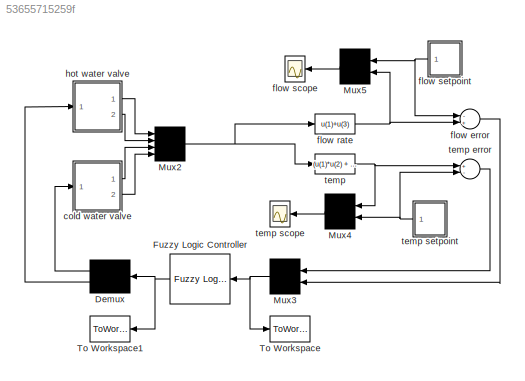
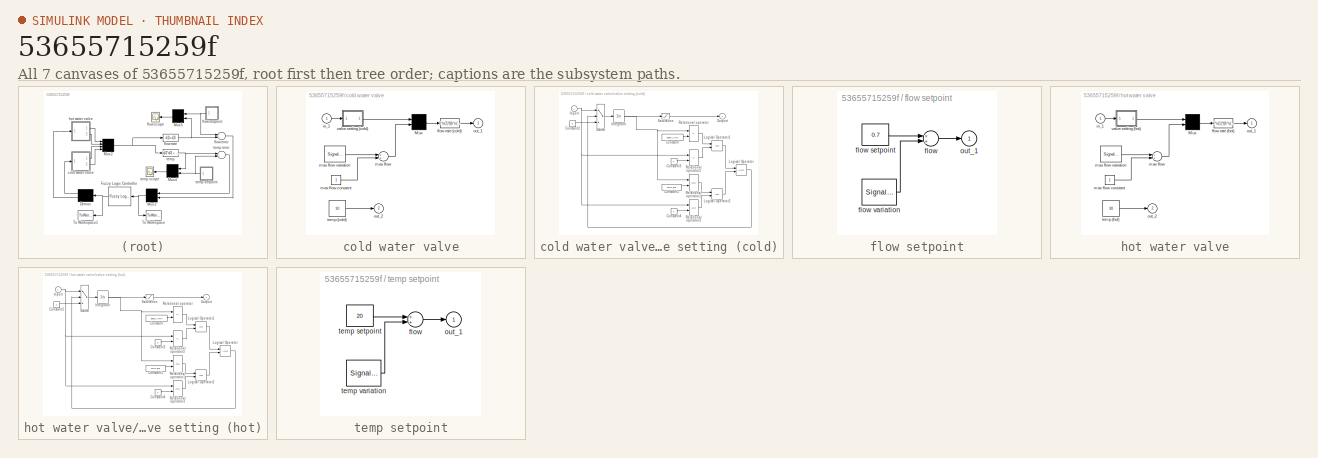
[diagram: thumbnail index - all 7 canvases of the model, root first then tree order]
MODEL slx_53655715259f
KIND model
CONFIG AbsTol = 1e-3
CONFIG EnableMultiTasking = off
CONFIG FixedStep = auto
CONFIG MaxStep = 0.1
CONFIG MinStep = auto
CONFIG PreLoadFcn = fisMatrix=readfis('shower'); k=1;
CONFIG RelTol = 1e-3
CONFIG SampleTimeConstraint = Unconstrained
CONFIG Solver = ode45
CONFIG SolverName = ode45
CONFIG StartTime = 0
CONFIG StopTime = 50
BLOCK [Demux] Demux
  Outputs = 2
  Ports = [1, 2]
BLOCK [Reference] Fuzzy Logic Controller  REF=fuzblock/Fuzzy Logic   (lib defined in mdl_858b3b3e7478)
Controller
  Ports = [1, 1]
  SourceBlock = fuzblock/Fuzzy Logic \nController
  SourceProductBaseCode = FL
  SourceProductName = Fuzzy Logic Toolbox
  SourceType = FIS
BLOCK [Mux] Mux2
  Ports = [4, 1]
BLOCK [Mux] Mux3
  Inputs = 2
  Ports = [2, 1]
BLOCK [Mux] Mux4
  Inputs = 2
  Ports = [2, 1]
BLOCK [Mux] Mux5
  Inputs = 2
  Ports = [2, 1]
BLOCK [ToWorkspace] To Workspace
  Ports = [1]
  VariableName = in
BLOCK [ToWorkspace] To Workspace1
  Ports = [1]
  VariableName = out
BLOCK [SubSystem] cold water valve
  Ports = [1, 2]
  RequestExecContextInheritance = off
  ShowPortLabels = none
  Variant = off
BLOCK [Mux] cold water valve/Mux
  Inputs = 2
  Ports = [2, 1]
BLOCK [Fcn] cold water valve/flow rate (cold)
  Expr = k*u(1)*((k*u(1))<=u(2)) + u(2)*((k*u(1))>u(2))
BLOCK [Inport] cold water valve/in_1
  IconDisplay = Port number
BLOCK [Sum] cold water valve/max flow
  Ports = [2, 1]
BLOCK [Constant] cold water valve/max flow constant
BLOCK [SignalGenerator] cold water valve/max flow variation
  Amplitude = 0.000000
  Frequency = 0.101325
  Ports = [0, 1]
  Units = rad/sec
BLOCK [Outport] cold water valve/out_1
  IconDisplay = Port number
  InitialOutput = 0
BLOCK [Outport] cold water valve/out_2
  IconDisplay = Port number
  InitialOutput = 0
  Port = 2
BLOCK [Constant] cold water valve/temp (cold)
  Value = 10
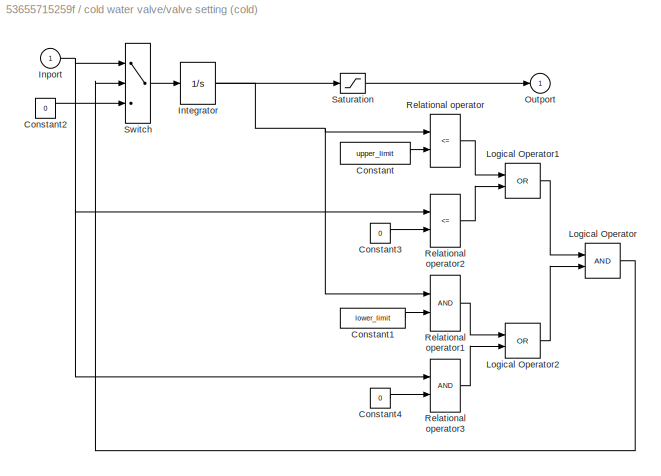
BLOCK [SubSystem] cold water valve/valve setting (cold)
  Ports = [1, 1]
  RequestExecContextInheritance = off
  ShowPortLabels = none
  Variant = off
BLOCK [Constant] cold water valve/valve setting (cold)/Constant
  Value = upper_limit
BLOCK [Constant] cold water valve/valve setting (cold)/Constant1
  Value = lower_limit
BLOCK [Constant] cold water valve/valve setting (cold)/Constant2
  Value = 0
BLOCK [Constant] cold water valve/valve setting (cold)/Constant3
  Value = 0
BLOCK [Constant] cold water valve/valve setting (cold)/Constant4
  Value = 0
BLOCK [Inport] cold water valve/valve setting (cold)/Inport
  IconDisplay = Port number
BLOCK [Integrator] cold water valve/valve setting (cold)/Integrator
  InitialCondition = X0
  Ports = [1, 1]
BLOCK [Logic] cold water valve/valve setting (cold)/Logical Operator
  Ports = [2, 1]
BLOCK [Logic] cold water valve/valve setting (cold)/Logical Operator1
  Operator = OR
  Ports = [2, 1]
BLOCK [Logic] cold water valve/valve setting (cold)/Logical Operator2
  Operator = OR
  Ports = [2, 1]
BLOCK [Outport] cold water valve/valve setting (cold)/Outport
  IconDisplay = Port number
  InitialOutput = 0
BLOCK [RelationalOperator] cold water valve/valve setting (cold)/Relational operator
  Operator = <=
  Ports = [2, 1]
BLOCK [RelationalOperator] cold water valve/valve setting (cold)/Relational operator1
  Ports = [2, 1]
BLOCK [RelationalOperator] cold water valve/valve setting (cold)/Relational operator2
  Operator = <=
  Ports = [2, 1]
BLOCK [RelationalOperator] cold water valve/valve setting (cold)/Relational operator3
  Ports = [2, 1]
BLOCK [Saturate] cold water valve/valve setting (cold)/Saturation
  InputPortMap = u0
  LowerLimit = lower_limit
  Ports = [1, 1]
  UpperLimit = upper_limit
BLOCK [Switch] cold water valve/valve setting (cold)/Switch
  Threshold = 0.5
BLOCK [Sum] flow error
  Inputs = -+
  Ports = [2, 1]
BLOCK [Fcn] flow rate
  Expr = u(1)+u(3)
BLOCK [Scope] flow scope
  NumInputPorts = 1
  Ports = [1]
  ScopeSpecificationString = C++SS(StrPVP('Location','[844, 580, 1061, 742]'),StrPVP('Open','off'),StrPVP('TickLabels','on'),MxPVP('AxesTitles',53,'struct(''axes1'',''%<SignalLabel>'')'),MxPVP('ScopeGraphics',56,'struct(''FigureColor'',''[0.5 0.5 0.5]'',''AxesColor'',''[0 0 0]'',''AxesTickColor'',''[1 1 1]'',''LineColors'',''[1 1 0;1 0 1;0 1 1;1 0 0;0 1 0;0 0 1]'',''LineStyles'',''-|-|-|-|-|-'',''LineWidths'',''[0.5 0.5 0.5 0...<+297ch>
BLOCK [SubSystem] flow setpoint
  Ports = [0, 1]
  RequestExecContextInheritance = off
  ShowPortLabels = none
  Variant = off
BLOCK [Sum] flow setpoint/flow
  Ports = [2, 1]
BLOCK [Constant] flow setpoint/flow setpoint
  Value = 0.7
BLOCK [SignalGenerator] flow setpoint/flow variation
  Amplitude = 0.200000
  Frequency = 0.300000
  Ports = [0, 1]
  Units = rad/sec
  WaveForm = square
BLOCK [Outport] flow setpoint/out_1
  IconDisplay = Port number
  InitialOutput = 0
BLOCK [SubSystem] hot water valve
  Ports = [1, 2]
  RequestExecContextInheritance = off
  ShowPortLabels = none
  Variant = off
BLOCK [Mux] hot water valve/Mux
  Inputs = 2
  Ports = [2, 1]
BLOCK [Fcn] hot water valve/flow rate (hot)
  Expr = k*u(1)*((k*u(1))<=u(2)) + u(2)*((k*u(1))>u(2))
BLOCK [Inport] hot water valve/in_1
  IconDisplay = Port number
BLOCK [Sum] hot water valve/max flow
  Ports = [2, 1]
BLOCK [Constant] hot water valve/max flow constant
BLOCK [SignalGenerator] hot water valve/max flow variation
  Amplitude = 0.000000
  Frequency = 0.300000
  Ports = [0, 1]
  Units = rad/sec
BLOCK [Outport] hot water valve/out_1
  IconDisplay = Port number
  InitialOutput = 0
BLOCK [Outport] hot water valve/out_2
  IconDisplay = Port number
  InitialOutput = 0
  Port = 2
BLOCK [Constant] hot water valve/temp (hot)
  Value = 30
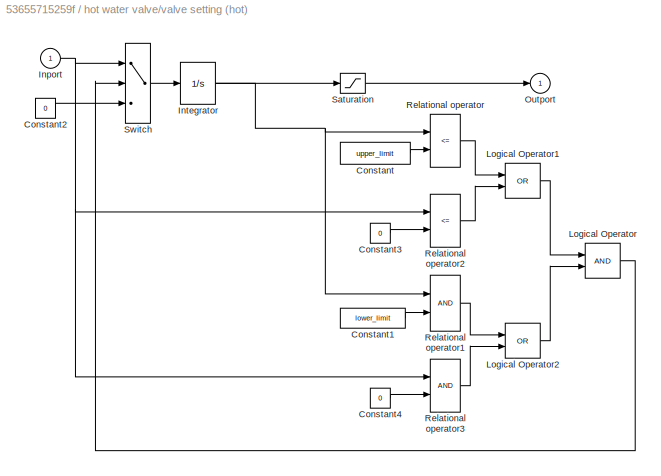
BLOCK [SubSystem] hot water valve/valve setting (hot)
  Ports = [1, 1]
  RequestExecContextInheritance = off
  ShowPortLabels = none
  Variant = off
BLOCK [Constant] hot water valve/valve setting (hot)/Constant
  Value = upper_limit
BLOCK [Constant] hot water valve/valve setting (hot)/Constant1
  Value = lower_limit
BLOCK [Constant] hot water valve/valve setting (hot)/Constant2
  Value = 0
BLOCK [Constant] hot water valve/valve setting (hot)/Constant3
  Value = 0
BLOCK [Constant] hot water valve/valve setting (hot)/Constant4
  Value = 0
BLOCK [Inport] hot water valve/valve setting (hot)/Inport
  IconDisplay = Port number
BLOCK [Integrator] hot water valve/valve setting (hot)/Integrator
  InitialCondition = X0
  Ports = [1, 1]
BLOCK [Logic] hot water valve/valve setting (hot)/Logical Operator
  Ports = [2, 1]
BLOCK [Logic] hot water valve/valve setting (hot)/Logical Operator1
  Operator = OR
  Ports = [2, 1]
BLOCK [Logic] hot water valve/valve setting (hot)/Logical Operator2
  Operator = OR
  Ports = [2, 1]
BLOCK [Outport] hot water valve/valve setting (hot)/Outport
  IconDisplay = Port number
  InitialOutput = 0
BLOCK [RelationalOperator] hot water valve/valve setting (hot)/Relational operator
  Operator = <=
  Ports = [2, 1]
BLOCK [RelationalOperator] hot water valve/valve setting (hot)/Relational operator1
  Ports = [2, 1]
BLOCK [RelationalOperator] hot water valve/valve setting (hot)/Relational operator2
  Operator = <=
  Ports = [2, 1]
BLOCK [RelationalOperator] hot water valve/valve setting (hot)/Relational operator3
  Ports = [2, 1]
BLOCK [Saturate] hot water valve/valve setting (hot)/Saturation
  InputPortMap = u0
  LowerLimit = lower_limit
  Ports = [1, 1]
  UpperLimit = upper_limit
BLOCK [Switch] hot water valve/valve setting (hot)/Switch
  Threshold = 0.5
BLOCK [Fcn] temp
  Expr = (u(1)*u(2) + u(3)*u(4))/(u(1)+u(3))
BLOCK [Sum] temp error
  Inputs = +-
  Ports = [2, 1]
BLOCK [Scope] temp scope
  NumInputPorts = 1
  Ports = [1]
  ScopeSpecificationString = C++SS(StrPVP('Location','[846, 277, 1065, 437]'),StrPVP('Open','off'),StrPVP('TickLabels','on'),MxPVP('AxesTitles',53,'struct(''axes1'',''%<SignalLabel>'')'),MxPVP('ScopeGraphics',56,'struct(''FigureColor'',''[0.5 0.5 0.5]'',''AxesColor'',''[0 0 0]'',''AxesTickColor'',''[1 1 1]'',''LineColors'',''[1 1 0;1 0 1;0 1 1;1 0 0;0 1 0;0 0 1]'',''LineStyles'',''-|-|-|-|-|-'',''LineWidths'',''[0.5 0.5 0.5 0...<+299ch>
BLOCK [SubSystem] temp setpoint
  Ports = [0, 1]
  RequestExecContextInheritance = off
  ShowPortLabels = none
  Variant = off
BLOCK [Sum] temp setpoint/flow
  Ports = [2, 1]
BLOCK [Outport] temp setpoint/out_1
  IconDisplay = Port number
  InitialOutput = 0
BLOCK [Constant] temp setpoint/temp setpoint
  Value = 20
BLOCK [SignalGenerator] temp setpoint/temp variation
  Amplitude = 4.000000
  Frequency = 0.214320
  Ports = [0, 1]
  Units = rad/sec
  WaveForm = square
LINE Demux:1 -> cold water valve:1
LINE Demux:2 -> hot water valve:1
NET Fuzzy Logic Controller:1 -> Demux:1, To Workspace1:1
NET Mux2:1 -> flow rate:1, temp:1
NET Mux3:1 -> Fuzzy Logic Controller:1, To Workspace:1
LINE Mux4:1 -> temp scope:1
LINE Mux5:1 -> flow scope:1
LINE cold water valve/Mux:1 -> cold water valve/flow rate (cold):1
LINE cold water valve/flow rate (cold):1 -> cold water valve/out_1:1
LINE cold water valve/in_1:1 -> cold water valve/valve setting (cold):1
LINE cold water valve/max flow constant:1 -> cold water valve/max flow:2
LINE cold water valve/max flow variation:1 -> cold water valve/max flow:1
LINE cold water valve/max flow:1 -> cold water valve/Mux:2
LINE cold water valve/temp (cold):1 -> cold water valve/out_2:1
LINE cold water valve/valve setting (cold)/Constant1:1 -> cold water valve/valve setting (cold)/Relational operator1:2
LINE cold water valve/valve setting (cold)/Constant2:1 -> cold water valve/valve setting (cold)/Switch:3
LINE cold water valve/valve setting (cold)/Constant3:1 -> cold water valve/valve setting (cold)/Relational operator2:2
LINE cold water valve/valve setting (cold)/Constant4:1 -> cold water valve/valve setting (cold)/Relational operator3:2
LINE cold water valve/valve setting (cold)/Constant:1 -> cold water valve/valve setting (cold)/Relational operator:2
NET cold water valve/valve setting (cold)/Inport:1 -> cold water valve/valve setting (cold)/Relational operator2:1, cold water valve/valve setting (cold)/Relational operator3:1, cold water valve/valve setting (cold)/Switch:1
NET cold water valve/valve setting (cold)/Integrator:1 -> cold water valve/valve setting (cold)/Relational operator1:1, cold water valve/valve setting (cold)/Relational operator:1, cold water valve/valve setting (cold)/Saturation:1
LINE cold water valve/valve setting (cold)/Logical Operator1:1 -> cold water valve/valve setting (cold)/Logical Operator:1
LINE cold water valve/valve setting (cold)/Logical Operator2:1 -> cold water valve/valve setting (cold)/Logical Operator:2
LINE cold water valve/valve setting (cold)/Logical Operator:1 -> cold water valve/valve setting (cold)/Switch:2
LINE cold water valve/valve setting (cold)/Relational operator1:1 -> cold water valve/valve setting (cold)/Logical Operator2:1
LINE cold water valve/valve setting (cold)/Relational operator2:1 -> cold water valve/valve setting (cold)/Logical Operator1:2
LINE cold water valve/valve setting (cold)/Relational operator3:1 -> cold water valve/valve setting (cold)/Logical Operator2:2
LINE cold water valve/valve setting (cold)/Relational operator:1 -> cold water valve/valve setting (cold)/Logical Operator1:1
LINE cold water valve/valve setting (cold)/Saturation:1 -> cold water valve/valve setting (cold)/Outport:1
LINE cold water valve/valve setting (cold)/Switch:1 -> cold water valve/valve setting (cold)/Integrator:1
LINE cold water valve/valve setting (cold):1 -> cold water valve/Mux:1
LINE cold water valve:1 -> Mux2:3
LINE cold water valve:2 -> Mux2:4
LINE flow error:1 -> Mux3:2
NET flow rate:1 -> Mux5:2, flow error:2
LINE flow setpoint/flow setpoint:1 -> flow setpoint/flow:1
LINE flow setpoint/flow variation:1 -> flow setpoint/flow:2
LINE flow setpoint/flow:1 -> flow setpoint/out_1:1
NET flow setpoint:1 -> Mux5:1, flow error:1
LINE hot water valve/Mux:1 -> hot water valve/flow rate (hot):1
LINE hot water valve/flow rate (hot):1 -> hot water valve/out_1:1
LINE hot water valve/in_1:1 -> hot water valve/valve setting (hot):1
LINE hot water valve/max flow constant:1 -> hot water valve/max flow:2
LINE hot water valve/max flow variation:1 -> hot water valve/max flow:1
LINE hot water valve/max flow:1 -> hot water valve/Mux:2
LINE hot water valve/temp (hot):1 -> hot water valve/out_2:1
LINE hot water valve/valve setting (hot)/Constant1:1 -> hot water valve/valve setting (hot)/Relational operator1:2
LINE hot water valve/valve setting (hot)/Constant2:1 -> hot water valve/valve setting (hot)/Switch:3
LINE hot water valve/valve setting (hot)/Constant3:1 -> hot water valve/valve setting (hot)/Relational operator2:2
LINE hot water valve/valve setting (hot)/Constant4:1 -> hot water valve/valve setting (hot)/Relational operator3:2
LINE hot water valve/valve setting (hot)/Constant:1 -> hot water valve/valve setting (hot)/Relational operator:2
NET hot water valve/valve setting (hot)/Inport:1 -> hot water valve/valve setting (hot)/Relational operator2:1, hot water valve/valve setting (hot)/Relational operator3:1, hot water valve/valve setting (hot)/Switch:1
NET hot water valve/valve setting (hot)/Integrator:1 -> hot water valve/valve setting (hot)/Relational operator1:1, hot water valve/valve setting (hot)/Relational operator:1, hot water valve/valve setting (hot)/Saturation:1
LINE hot water valve/valve setting (hot)/Logical Operator1:1 -> hot water valve/valve setting (hot)/Logical Operator:1
LINE hot water valve/valve setting (hot)/Logical Operator2:1 -> hot water valve/valve setting (hot)/Logical Operator:2
LINE hot water valve/valve setting (hot)/Logical Operator:1 -> hot water valve/valve setting (hot)/Switch:2
LINE hot water valve/valve setting (hot)/Relational operator1:1 -> hot water valve/valve setting (hot)/Logical Operator2:1
LINE hot water valve/valve setting (hot)/Relational operator2:1 -> hot water valve/valve setting (hot)/Logical Operator1:2
LINE hot water valve/valve setting (hot)/Relational operator3:1 -> hot water valve/valve setting (hot)/Logical Operator2:2
LINE hot water valve/valve setting (hot)/Relational operator:1 -> hot water valve/valve setting (hot)/Logical Operator1:1
LINE hot water valve/valve setting (hot)/Saturation:1 -> hot water valve/valve setting (hot)/Outport:1
LINE hot water valve/valve setting (hot)/Switch:1 -> hot water valve/valve setting (hot)/Integrator:1
LINE hot water valve/valve setting (hot):1 -> hot water valve/Mux:1
LINE hot water valve:1 -> Mux2:1
LINE hot water valve:2 -> Mux2:2
LINE temp error:1 -> Mux3:1
LINE temp setpoint/flow:1 -> temp setpoint/out_1:1
LINE temp setpoint/temp setpoint:1 -> temp setpoint/flow:1
LINE temp setpoint/temp variation:1 -> temp setpoint/flow:2
NET temp setpoint:1 -> Mux4:2, temp error:2
NET temp:1 -> Mux4:1, temp error:1
note: NET lines group one-source signal fan-out (src -> all destinations, sorted); 1:1 wires keep LINE
